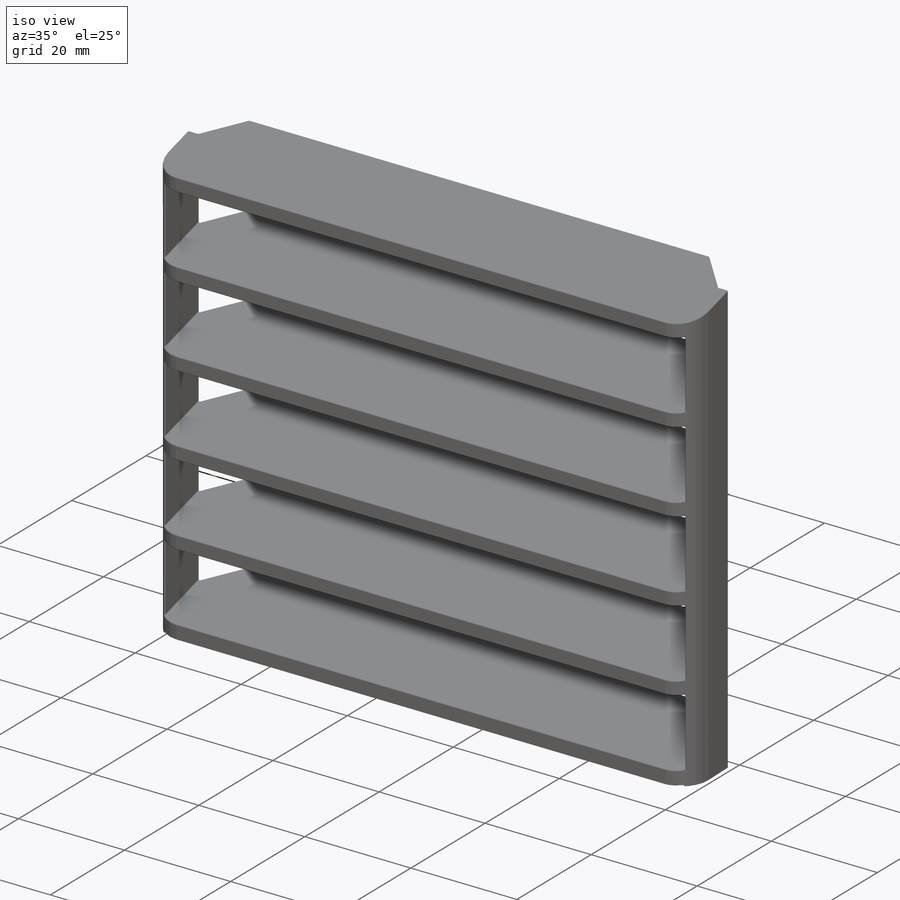
[diagram: iso view]
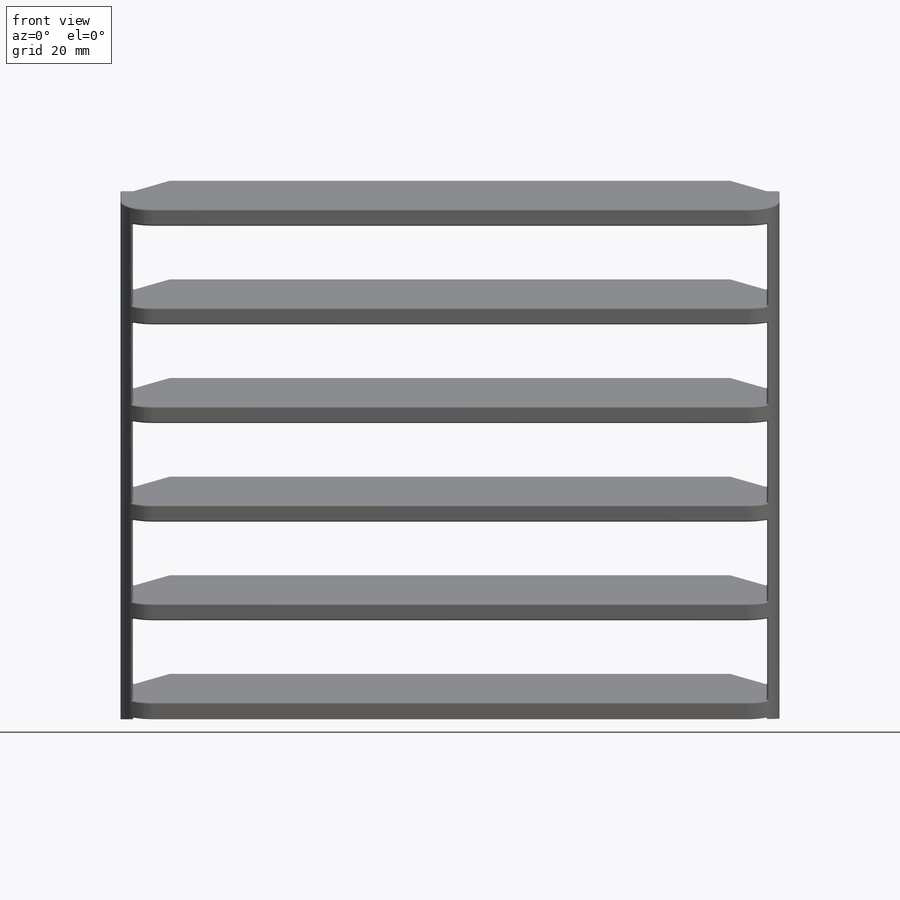
[diagram: front view]
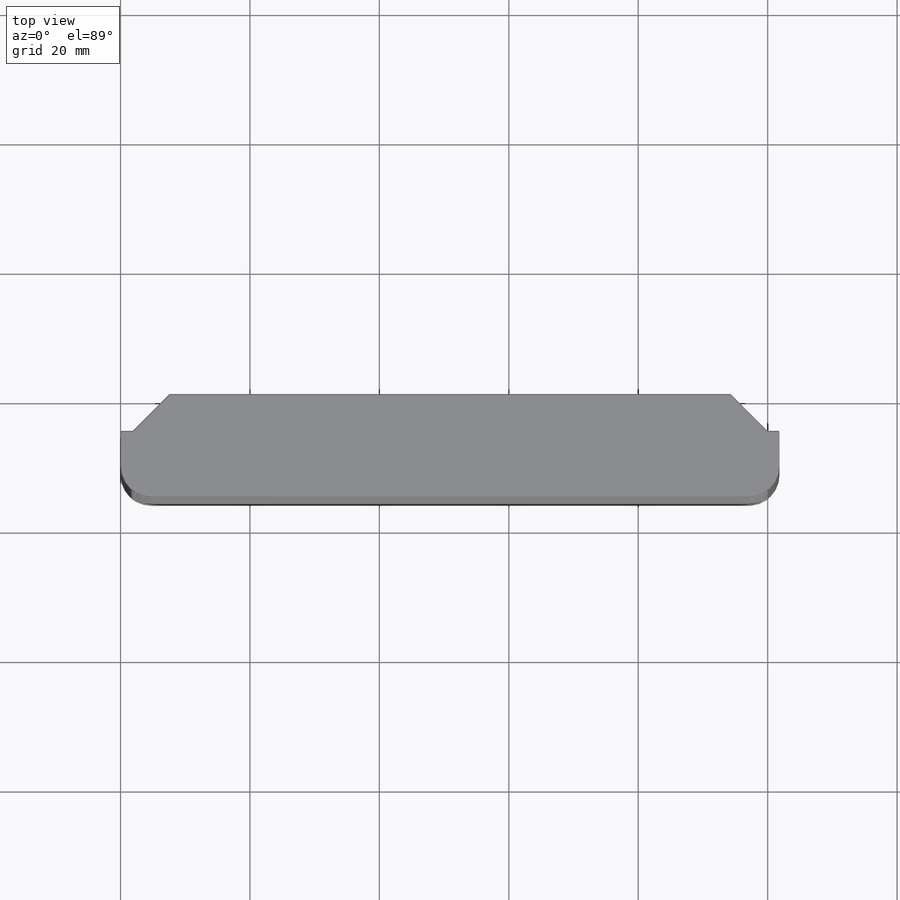
[diagram: top view]
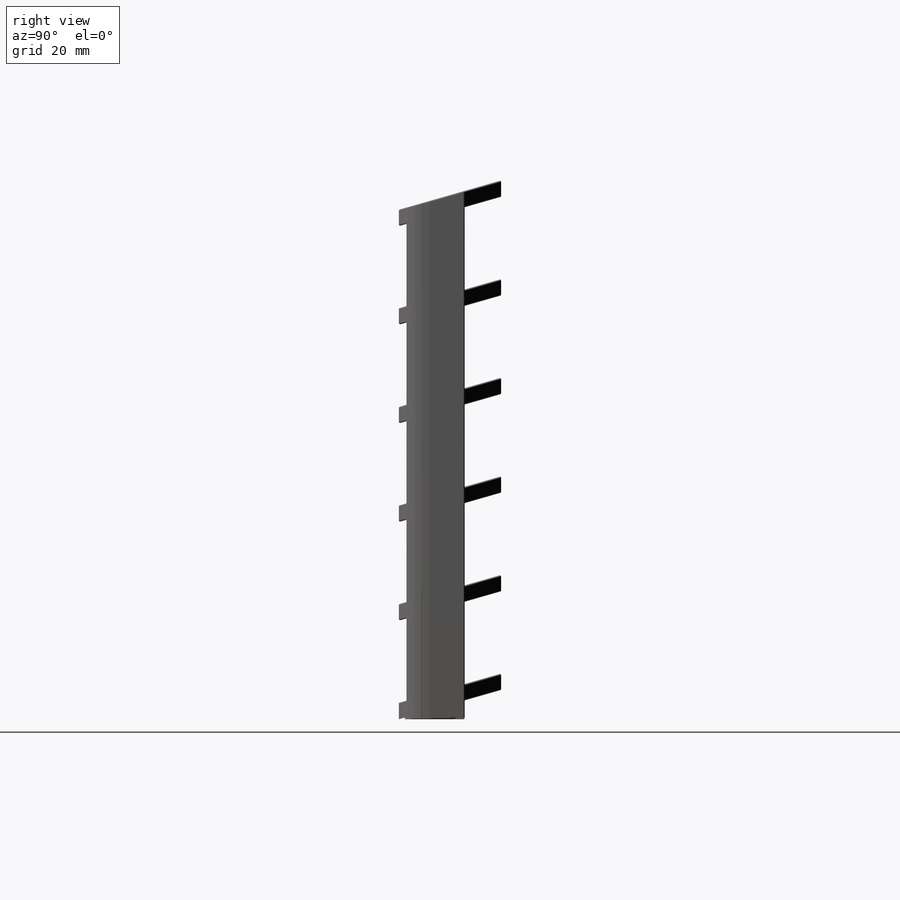
[diagram: right view]
SOLIDWORKS PART (.sldprt)
format: sldprt  version: not decoded by parser v0  size: 986,624 bytes
history: native  units: mm
features: sketch x6, extrude x3, fillet x3, cut_extrude x2, material x1 (+16 scaffold rows collapsed)
feature tree (31):
  scaffold x16  (default folders/planes/origin — collapsed)
  material  "Material <not specified>"
  sketch  "Sketch2"  dims[c1.D1=~17.210887mm c2.D1=106.0deg c3.D1=~17.287486mm c4.D1=106.0deg]
  sketch  "Sketch3"  dims[D1=101.8286mm D2=78.74mm]
  extrude  "Extrude1"  Depth=16.4465mm
  sketch  "Sketch4"  dims[D1=6.35mm D2=6.35mm D3=1.905mm D4=1.905mm D5=2.54mm D6=12.7mm D7=2.54mm D8=12.7mm]
  cut_extrude  "Extrude2"  [1 undecoded]
  sketch  "Sketch5"  dims[c1.D2=~5.64939mm c2.D2=135.0deg c2.D1=10.16mm]
  cut_extrude  "Extrude3"  [1 undecoded]
  sketch  "Sketch8"
  extrude  "Extrude5"  [1 undecoded]
  sketch  "Sketch9"
  extrude  "Extrude6"  [1 undecoded]
  fillet  "Fillet1"  Radius=4.7625mm
  fillet  "Fillet2"  Radius=0.198437mm
  fillet  "Fillet3"  Radius=0.198437mm
decode coverage: 8 of 14 modeling features carry decoded parameters
note: ~ marks probable driven/reference dimensions
note: 4 parameter values undecoded
summary: no parameter record found for 4 features
note: suppression state not decoded; provenance and decode notes live in map.json
